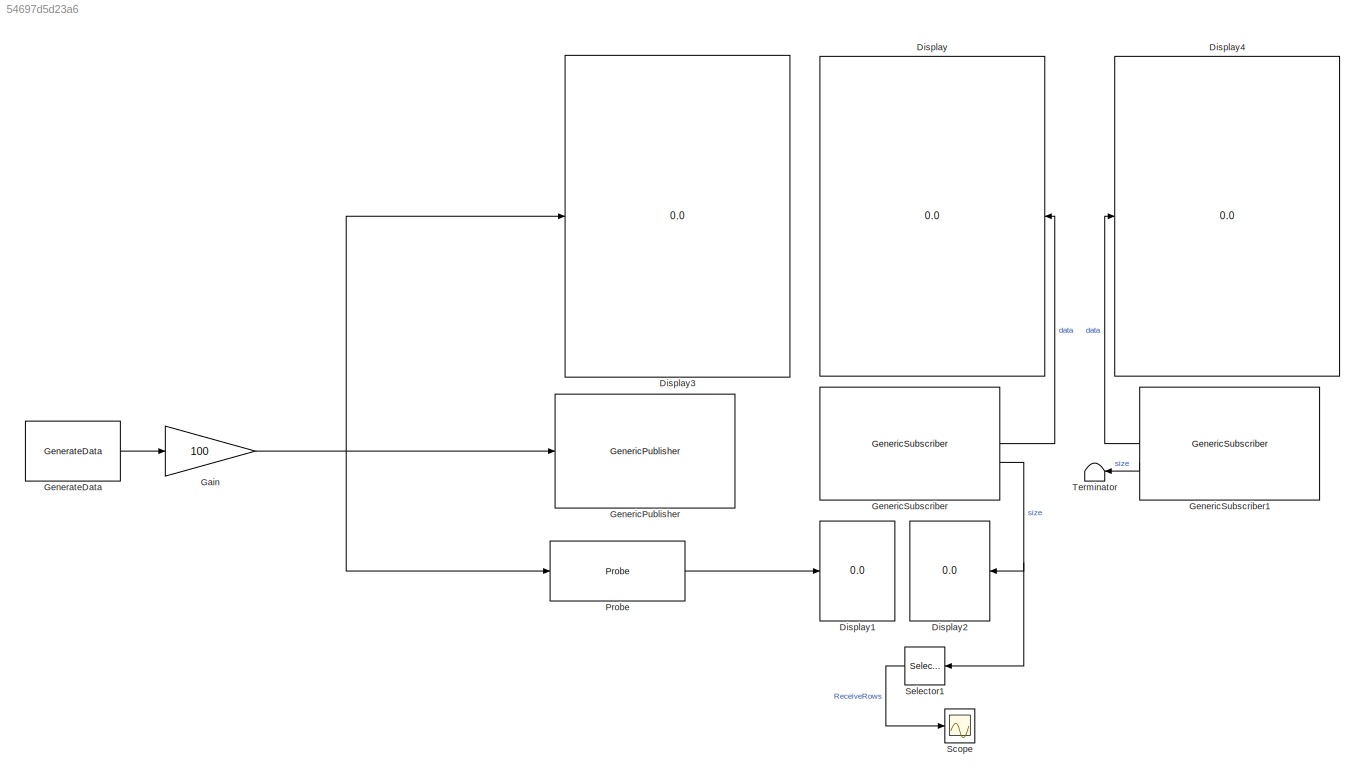
MODEL slx_54697d5d23a6
KIND model
CONFIG AbsTol = auto
CONFIG EnableMultiTasking = off
CONFIG FixedStep = auto
CONFIG MaxStep = auto
CONFIG MinStep = auto
CONFIG RelTol = 1e-3
CONFIG SampleTimeConstraint = Unconstrained
CONFIG SolverName = FixedStepAuto
CONFIG StartTime = 0.0
CONFIG StopTime = 1
WORKSPACE source: mxarray member
WORKSPACE SL_ROS_VariableLengthArrays_MaxSizes: object (value not decoded)
BLOCK [Display] Display
  Decimation = 1
  NameLocation = top
BLOCK [Display] Display1
  Decimation = 1
BLOCK [Display] Display2
  Decimation = 1
  NameLocation = top
BLOCK [Display] Display3
  Decimation = 1
BLOCK [Display] Display4
  Decimation = 1
BLOCK [Gain] Gain
  Gain = 100
BLOCK [Reference] GenerateData  REF=roshelperlib/GenerateData  (lib defined in slx_3328ea0e13a5)
  SourceBlock = roshelperlib/GenerateData
BLOCK [Reference] GenericPublisher  REF=roshelperlib/GenericPublisher  (lib defined in slx_3328ea0e13a5)
  SourceBlock = roshelperlib/GenericPublisher
BLOCK [Reference] GenericSubscriber  REF=roshelperlib/GenericSubscriber  (lib defined in slx_3328ea0e13a5)
  SourceBlock = roshelperlib/GenericSubscriber
BLOCK [Reference] GenericSubscriber1  REF=roshelperlib/GenericSubscriber  (lib defined in slx_3328ea0e13a5)
  NameLocation = top
  SourceBlock = roshelperlib/GenericSubscriber
BLOCK [Probe] Probe
  ProbeComplexSignal = off
  ProbeSampleTime = off
  ProbeSignalDimensions = on
  ProbeWidth = off
BLOCK [Scope] Scope
  Floating = off
  NumInputPorts = 1
  ScopeSpecificationString = Simulink.scopes.TimeScopeBlockCfg('CurrentConfiguration', extmgr.ConfigurationSet(extmgr.Configuration('Core','General UI',true),extmgr.Configuration('Core','Source UI',true),extmgr.Configuration('Sources','WiredSimulink',true),extmgr.Configuration('Visuals','Time Domain',true,'SerializedDisplays',{struct('MinYLimReal','-2.5','MaxYLimReal','22.5','YLabelReal','','MinYLimMag','0.00000','MaxYLimMag'...<+1428ch>
BLOCK [Selector] Selector1
  IndexOptions = Index vector (dialog)
  Indices = 1
  InputPortWidth = 2
  NameLocation = top
  OutputSizes = 1
BLOCK [Terminator] Terminator
  NameLocation = top
NET Gain:1 -> Display3:1, GenericPublisher:1, Probe:1
LINE GenerateData:1 -> Gain:1
LINE GenericSubscriber1:1 -> Display4:1
LINE GenericSubscriber1:2 -> Terminator:1
LINE GenericSubscriber:1 -> Display:1
NET GenericSubscriber:2 -> Display2:1, Selector1:1
LINE Probe:1 -> Display1:1
LINE Selector1:1 -> Scope:1
note: NET lines group one-source signal fan-out (src -> all destinations, sorted); 1:1 wires keep LINE
